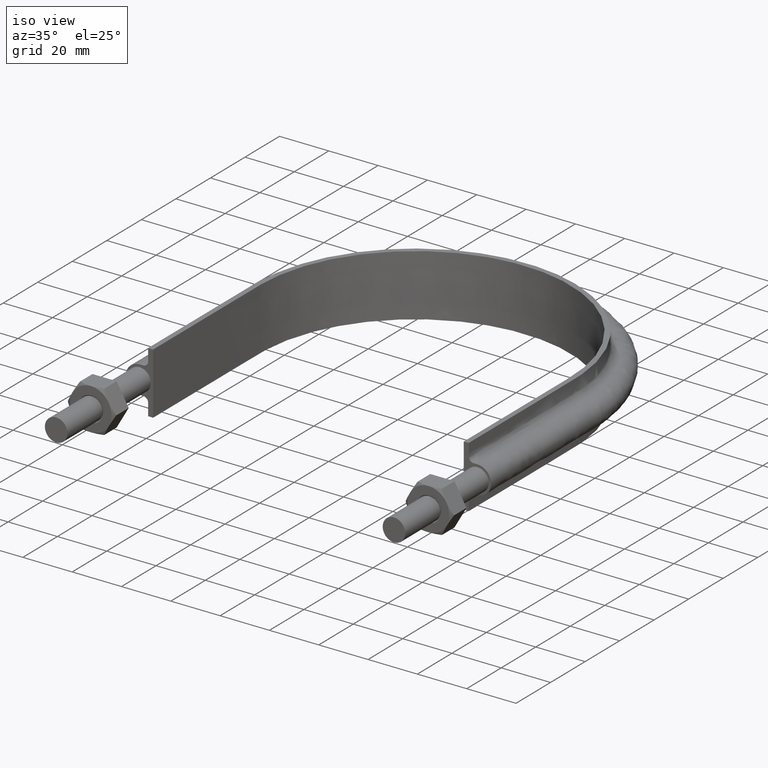
[diagram: clean part render]
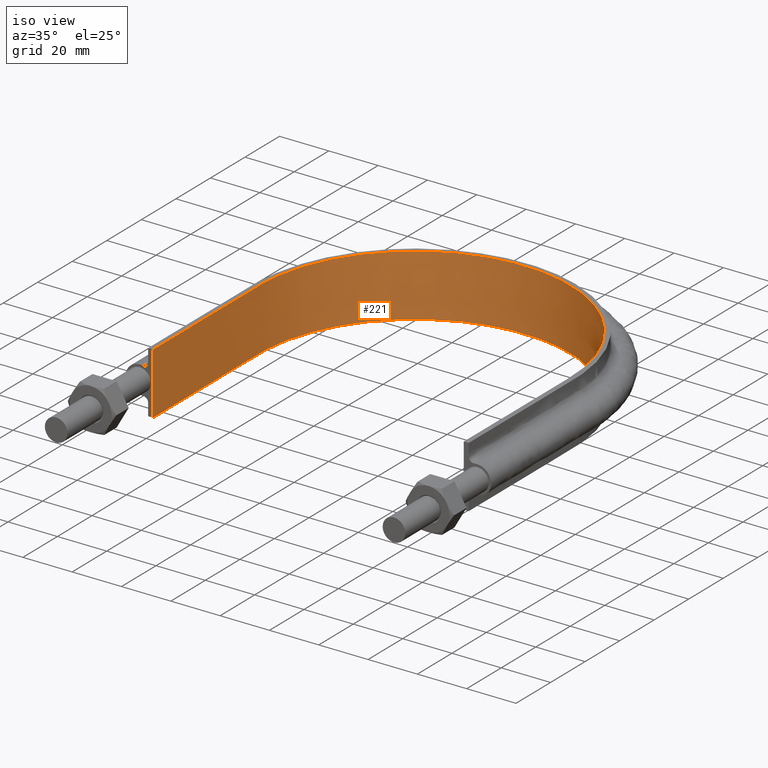
[diagram: tour spotlight — one face highlighted and labeled with its STEP entity id]
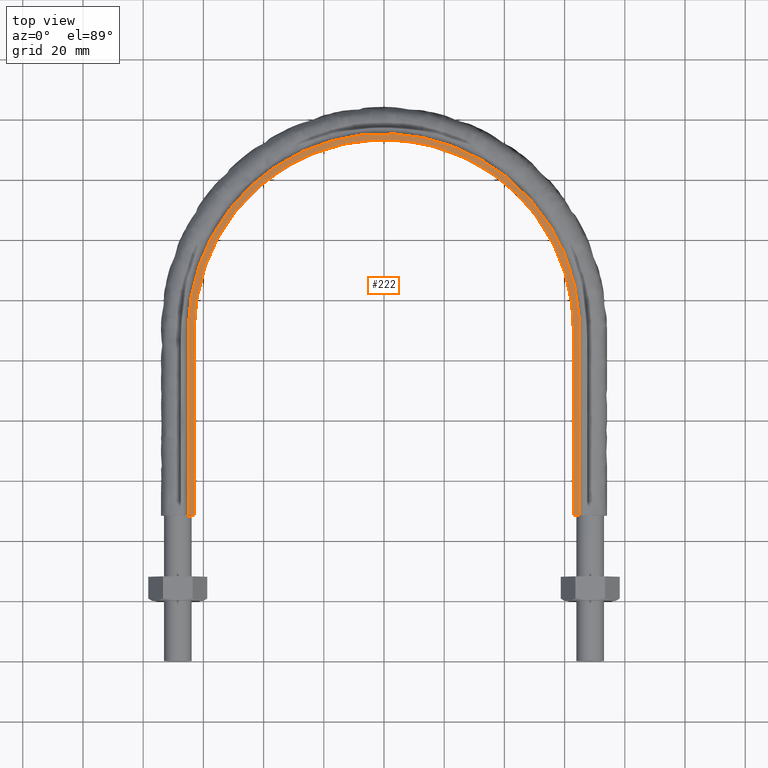
[diagram: tour spotlight — one face highlighted and labeled with its STEP entity id]
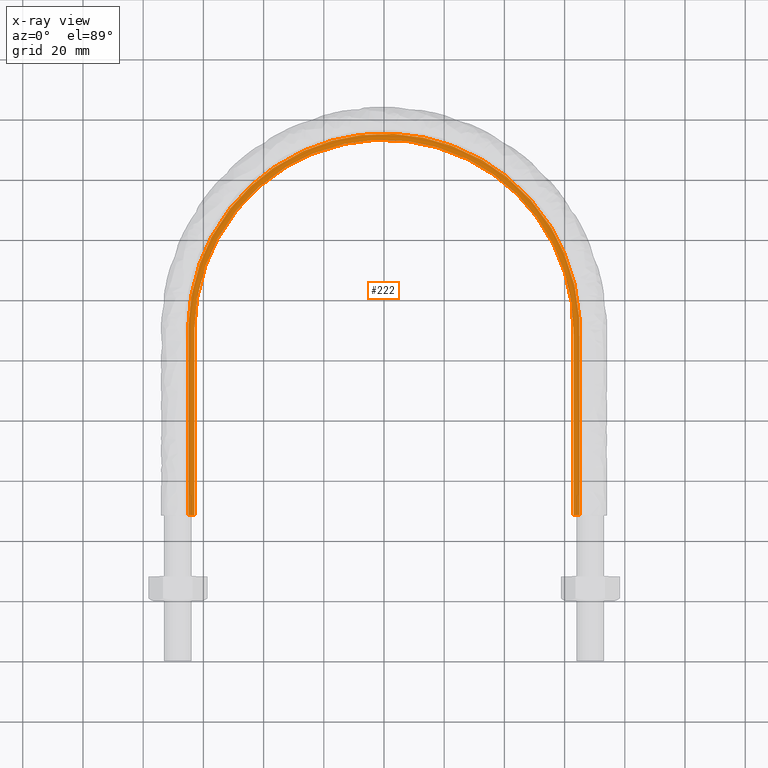
[diagram: x-ray of the same camera — body ghosted, this tour face saturated]
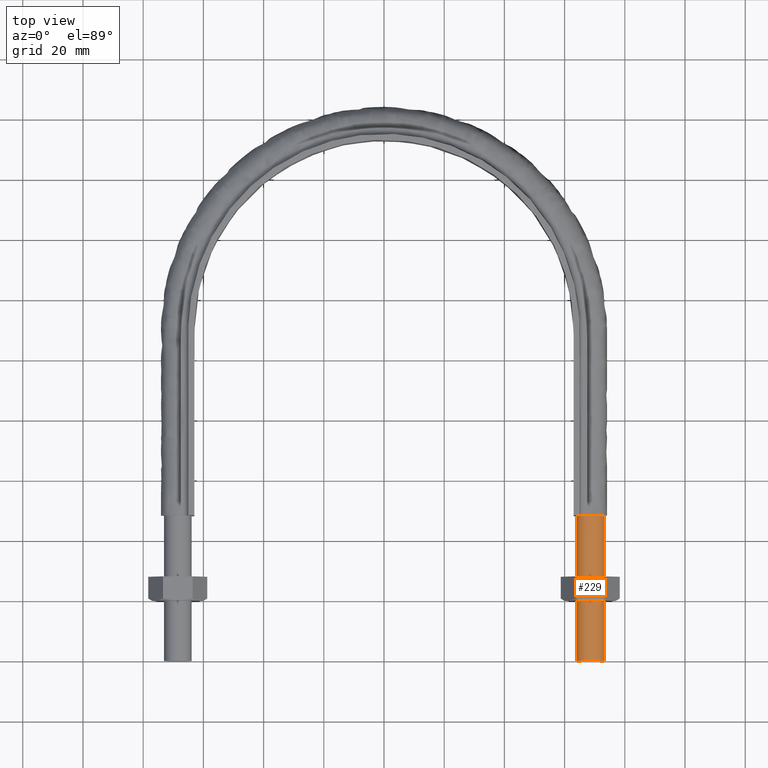
[diagram: tour spotlight — one face highlighted and labeled with its STEP entity id]
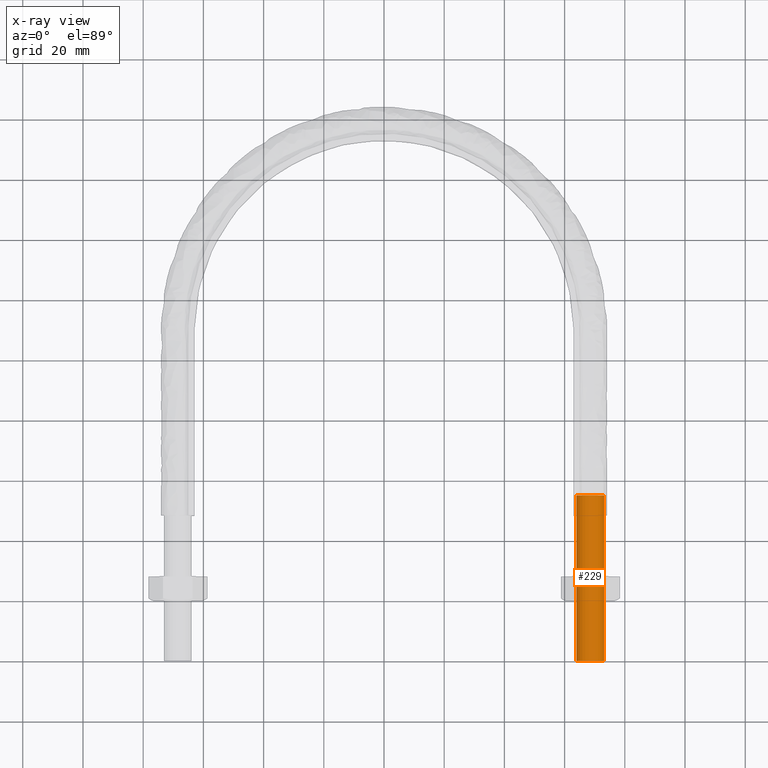
[diagram: x-ray of the same camera — body ghosted, this tour face saturated]
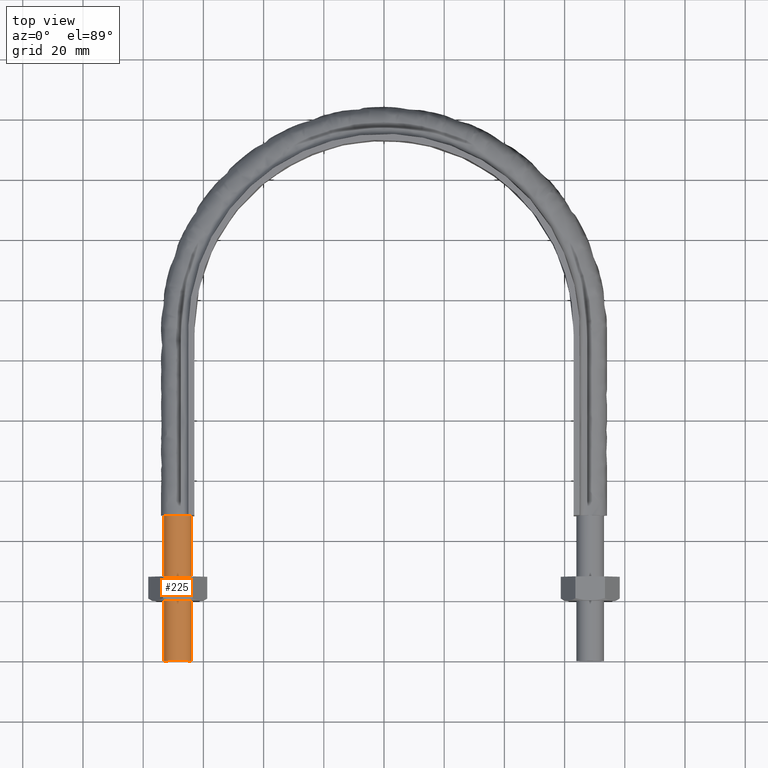
[diagram: tour spotlight — one face highlighted and labeled with its STEP entity id]
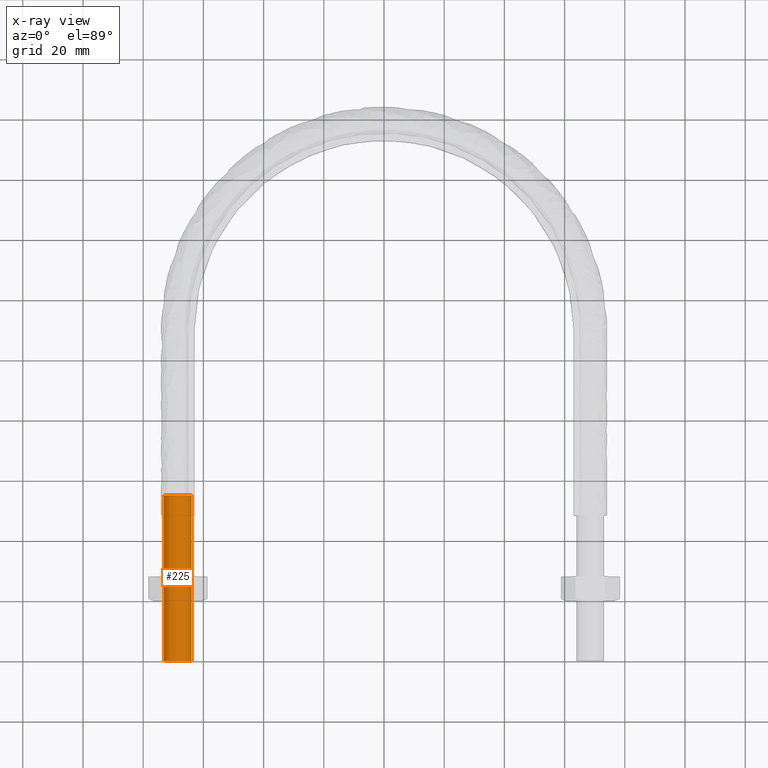
[diagram: x-ray of the same camera — body ghosted, this tour face saturated]
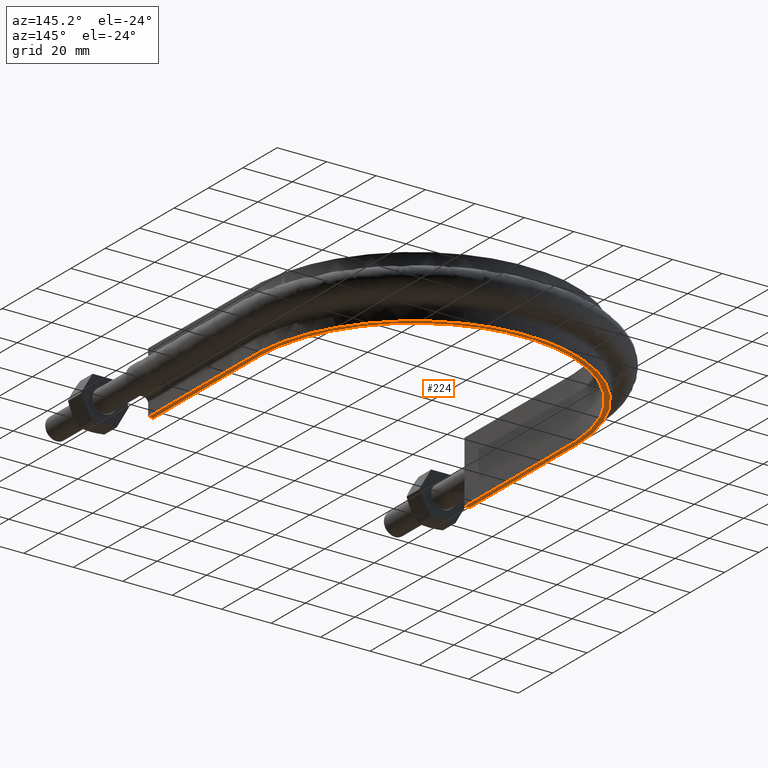
[diagram: tour spotlight — one face highlighted and labeled with its STEP entity id]
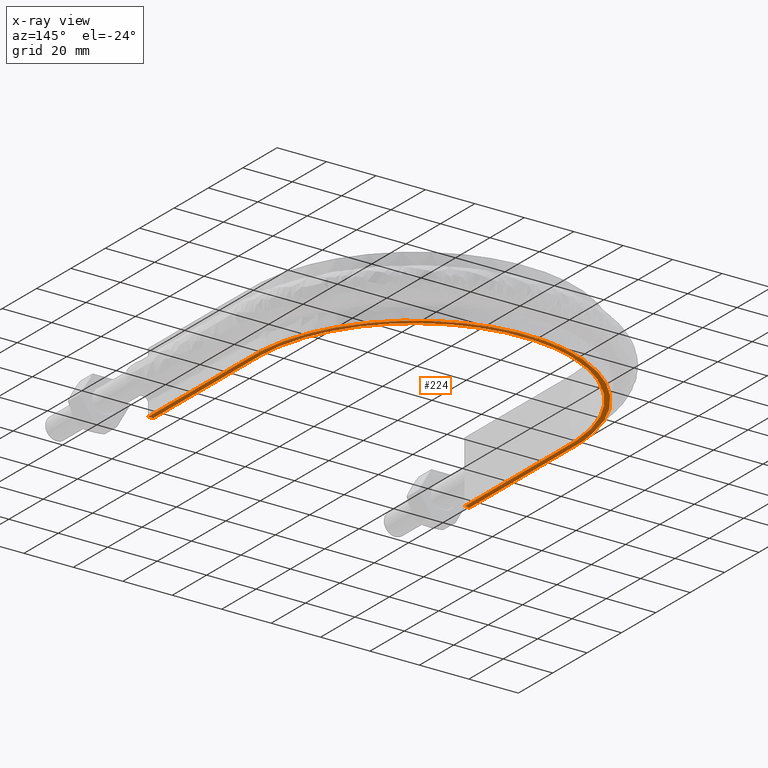
[diagram: x-ray of the same camera — body ghosted, this tour face saturated]
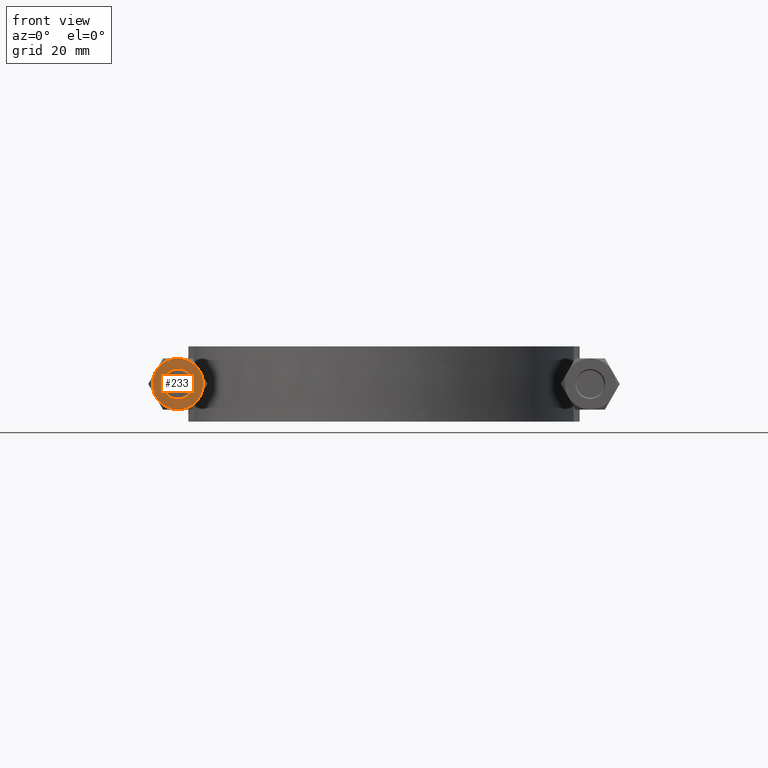
[diagram: tour spotlight — one face highlighted and labeled with its STEP entity id]
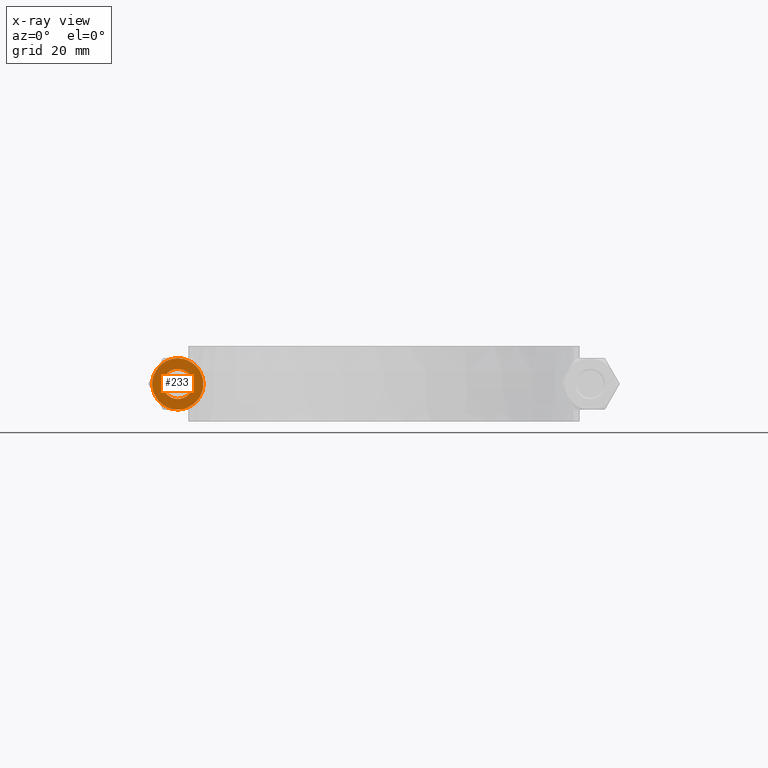
[diagram: x-ray of the same camera — body ghosted, this tour face saturated]
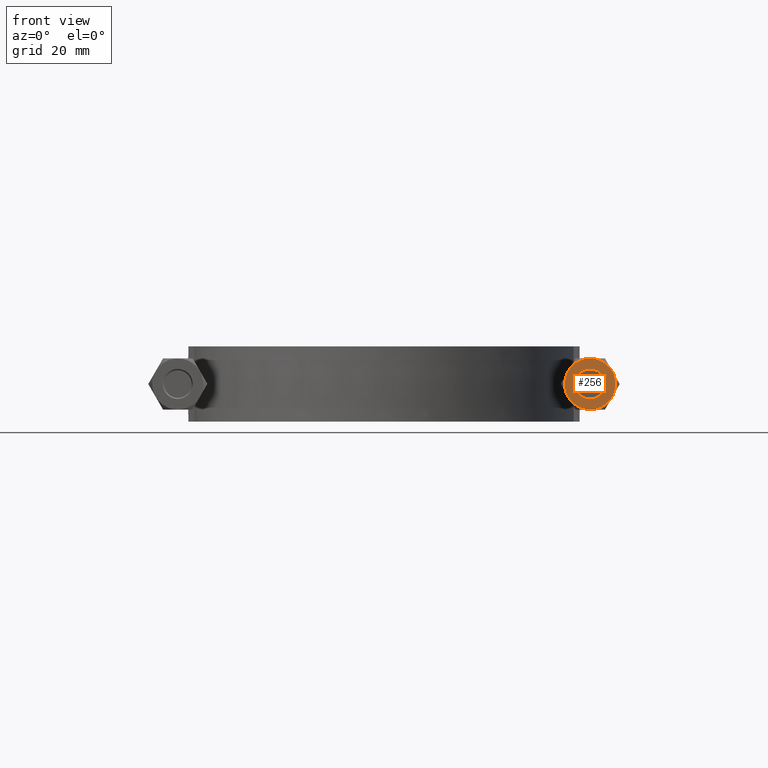
[diagram: tour spotlight — one face highlighted and labeled with its STEP entity id]
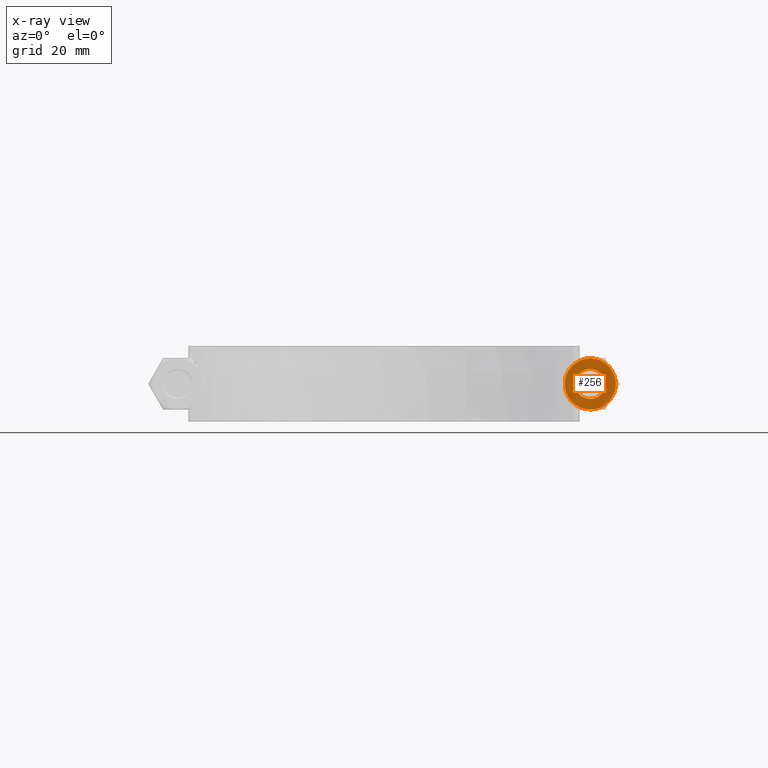
[diagram: x-ray of the same camera — body ghosted, this tour face saturated]
A machine part: a face-by-face anatomy tour. The part has 59 B-rep faces; the first image is the clean iso view, then the 7 largest visible faces are spotlighted one at a time (largest first), each with its STEP entity span.

Face 1 — iso view, entity #221. In plain terms, the highlighted face is a SurfaceOfExtrusion surface.
Definition (entity closure, byte-faithful):
#221 = ADVANCED_FACE( '', ( #283 ), #284, .T. );
#283 = FACE_OUTER_BOUND( '', #416, .T. );
#284 = SURFACE_OF_LINEAR_EXTRUSION( '', #417, #418 );
#416 = EDGE_LOOP( '', ( #1214, #1215, #1216, #1217 ) );
#417 = B_SPLINE_CURVE_WITH_KNOTS( '', 3, ( #1218, #1219, #1220, #1221, #1222, #1223, #1224, #1225, #1226, #1227, #1228, #1229, #1230, #1231, #1232, #1233 ), .UNSPECIFIED., .F., .F., ( 4, 3, 1, 1, 1, 1, 1, 1, 3, 4 ), ( -8.94070121951220, -8.00000000000000, -7.00000000000000, -6.00000000000000, -5.00000000000000, -4.00000000000000, -3.00000000000000, -2.00000000000000, -1.00000000000000, -0.0592987804878047 ), .UNSPECIFIED. );
#418 = VECTOR( '', #1234, 1000.00000000000 );
#1214 = ORIENTED_EDGE( '', *, *, #1629, .T. );
#1215 = ORIENTED_EDGE( '', *, *, #1637, .T. );
#1216 = ORIENTED_EDGE( '', *, *, #1634, .F. );
#1217 = ORIENTED_EDGE( '', *, *, #1638, .T. );
#1218 = CARTESIAN_POINT( '', ( 63.0000000000001, 48.3000000000000, 12.5000100000910 ) );
#1219 = CARTESIAN_POINT( '', ( 63.0000000000001, 68.8699999999999, 12.5000100000910 ) );
#1220 = CARTESIAN_POINT( '', ( 63.0000000000001, 89.4400000000000, 12.5000100000910 ) );
#1221 = CARTESIAN_POINT( '', ( 63.0000000000001, 110.010000000000, 12.5000100000910 ) );
#1222 = CARTESIAN_POINT( '', ( 63.0000000000001, 119.418317561996, 12.5000100000910 ) );
#1223 = CARTESIAN_POINT( '', ( 58.6987050835477, 138.284426223830, 12.5000100000910 ) );
#1224 = CARTESIAN_POINT( '', ( 40.6207642746977, 160.945085260037, 12.5000100000910 ) );
#1225 = CARTESIAN_POINT( '', ( 14.4973829202631, 173.527533108938, 12.5000100000910 ) );
#1226 = CARTESIAN_POINT( '', ( -14.4973829202630, 173.527533108938, 12.5000100000910 ) );
#1227 = CARTESIAN_POINT( '', ( -40.6207642746976, 160.945085260037, 12.5000100000910 ) );
#1228 = CARTESIAN_POINT( '', ( -58.6987050835477, 138.284426223830, 12.5000100000910 ) );
#1229 = CARTESIAN_POINT( '', ( -63.0000000000000, 119.418317561996, 12.5000100000910 ) );
#1230 = CARTESIAN_POINT( '', ( -63.0000000000000, 110.010000000000, 12.5000100000910 ) );
#1231 = CARTESIAN_POINT( '', ( -63.0000000000000, 89.4400000000000, 12.5000100000910 ) );
#1232 = CARTESIAN_POINT( '', ( -63.0000000000000, 68.8700000000000, 12.5000100000910 ) );
#1233 = CARTESIAN_POINT( '', ( -63.0000000000000, 48.3000000000000, 12.5000100000910 ) );
#1234 = DIRECTION( '', ( 0.000000000000000, 0.000000000000000, -1.00000000000000 ) );
#1629 = EDGE_CURVE( '', #1751, #1752, #1753, .T. );
#1634 = EDGE_CURVE( '', #1759, #1762, #1763, .T. );
#1637 = EDGE_CURVE( '', #1752, #1762, #1767, .F. );
#1638 = EDGE_CURVE( '', #1759, #1751, #1768, .T. );
#1751 = VERTEX_POINT( '', #1955 );
#1752 = VERTEX_POINT( '', #1956 );
#1753 = LINE( '', #1957, #1958 );
#1759 = VERTEX_POINT( '', #1996 );
#1762 = VERTEX_POINT( '', #2000 );
#1763 = LINE( '', #2001, #2002 );
#1767 = B_SPLINE_CURVE_WITH_KNOTS( '', 3, ( #2037, #2038, #2039, #2040, #2041, #2042, #2043, #2044, #2045, #2046, #2047, #2048, #2049, #2050, #2051, #2052 ), .UNSPECIFIED., .F., .F., ( 4, 3, 1, 1, 1, 1, 1, 1, 3, 4 ), ( -8.94070121951220, -8.00000000000000, -7.00000000000000, -6.00000000000000, -5.00000000000000, -4.00000000000000, -3.00000000000000, -2.00000000000000, -1.00000000000000, -0.0592987804878047 ), .UNSPECIFIED. );
#1768 = B_SPLINE_CURVE_WITH_KNOTS( '', 3, ( #2053, #2054, #2055, #2056, #2057, #2058, #2059, #2060, #2061, #2062, #2063, #2064, #2065, #2066, #2067, #2068, #2069, #2070, #2071, #2072, #2073, #2074, #2075, #2076, #2077, #2078, #2079, #2080, #2081, #2082, #2083, #2084, #2085, #2086, #2087, #2088, #2089, #2090, #2091, #2092, #2093, #2094, #2095, #2096, #2097, #2098, #2099, #2100, #2101, #2102, #2103, #2104, #2105, #2106, #2107, #2108, #2109, #2110, #2111, #2112, #2113, #2114, #2115, #2116, #2117, #2118, #2119, #2120, #2121, #2122, #2123, #2124, #2125, #2126, #2127, #2128, #2129, #2130, #2131, #2132, #2133, #2134, #2135, #2136, #2137, #2138, #2139, #2140 ), .UNSPECIFIED., .F., .F., ( 4, 1, 2, 2, 2, 2, 2, 2, 2, 2, 2, 2, 2, 2, 2, 2, 2, 2, 2, 2, 2, 2, 2, 2, 2, 2, 2, 2, 2, 2, 2, 2, 2, 2, 2, 2, 2, 2, 2, 2, 2, 2, 2, 1, 4 ), ( 4.85722573273506E-017, 0.0403585199906452, 0.0605377799859678, 0.0630601874853832, 0.0655825949847985, 0.0706274099836291, 0.0807170399812904, 0.0857618549801210, 0.0882842624795363, 0.0908066699789517, 0.100896299976613, 0.105941114975443, 0.108463522474859, 0.110985929974274, 0.121075559971935, 0.126120374970766, 0.128642782470181, 0.131165189969596, 0.141254819967257, 0.146299634966088, 0.148822042465503, 0.151344449964918, 0.161434079962579, 0.171523709960240, 0.174046117459656, 0.176568524959071, 0.181613339957901, 0.191702969955563, 0.194225377454978, 0.196747784954393, 0.201792599953224, 0.211882229950885, 0.214404637450300, 0.216927044949715, 0.221971859948546, 0.232061489946206, 0.234583897445622, 0.237106304945037, 0.242151119943867, 0.252240749941528, 0.257285564940358, 0.259807972439773, 0.262330379939188, 0.282509639934510, 0.322868159925153 ), .UNSPECIFIED. );
#1955 = CARTESIAN_POINT( '', ( -63.0000000000001, 48.3000000000000, 12.5000000000000 ) );
#1956 = CARTESIAN_POINT( '', ( -63.0000000000000, 48.3000000000001, -12.5000000000000 ) );
#1957 = CARTESIAN_POINT( '', ( -63.0000000000001, 48.3000000000000, 12.5000100000910 ) );
#1958 = VECTOR( '', #2547, 1000.00000000000 );
#1996 = CARTESIAN_POINT( '', ( 63.0000000000001, 48.3000000000000, 12.5000000000000 ) );
#2000 = CARTESIAN_POINT( '', ( 63.0000000000001, 48.3000000000000, -12.5000000000000 ) );
#2001 = CARTESIAN_POINT( '', ( 63.0000000000001, 48.3000000000000, 12.5000100000910 ) );
#2002 = VECTOR( '', #2551, 1000.00000000000 );
#2037 = CARTESIAN_POINT( '', ( 63.0000000000001, 48.3000000000000, -12.5000000000000 ) );
#2038 = CARTESIAN_POINT( '', ( 63.0000000000001, 68.8699999999999, -12.5000000000000 ) );
#2039 = CARTESIAN_POINT( '', ( 63.0000000000001, 89.4400000000000, -12.5000000000000 ) );
#2040 = CARTESIAN_POINT( '', ( 63.0000000000001, 110.010000000000, -12.5000000000000 ) );
#2041 = CARTESIAN_POINT( '', ( 63.0000000000001, 119.418317561996, -12.5000000000000 ) );
#2042 = CARTESIAN_POINT( '', ( 58.6987050835477, 138.284426223830, -12.5000000000000 ) );
#2043 = CARTESIAN_POINT( '', ( 40.6207642746977, 160.945085260037, -12.5000000000000 ) );
#2044 = CARTESIAN_POINT( '', ( 14.4973829202631, 173.527533108938, -12.5000000000000 ) );
#2045 = CARTESIAN_POINT( '', ( -14.4973829202630, 173.527533108938, -12.5000000000000 ) );
#2046 = CARTESIAN_POINT( '', ( -40.6207642746976, 160.945085260037, -12.5000000000000 ) );
#2047 = CARTESIAN_POINT( '', ( -58.6987050835477, 138.284426223830, -12.5000000000000 ) );
#2048 = CARTESIAN_POINT( '', ( -63.0000000000000, 119.418317561996, -12.5000000000000 ) );
#2049 = CARTESIAN_POINT( '', ( -63.0000000000000, 110.010000000000, -12.5000000000000 ) );
#2050 = CARTESIAN_POINT( '', ( -63.0000000000000, 89.4400000000000, -12.5000000000000 ) );
#2051 = CARTESIAN_POINT( '', ( -63.0000000000000, 68.8700000000000, -12.5000000000000 ) );
#2052 = CARTESIAN_POINT( '', ( -63.0000000000000, 48.3000000000000, -12.5000000000000 ) );
#2053 = CARTESIAN_POINT( '', ( 63.0000000000001, 48.3000000000000, 12.5000000000000 ) );
#2054 = CARTESIAN_POINT( '', ( 63.0000000000001, 61.7528561301916, 12.5000000000000 ) );
#2055 = CARTESIAN_POINT( '', ( 63.0000000000001, 81.9321403254790, 12.5000000000000 ) );
#2056 = CARTESIAN_POINT( '', ( 63.0000000000001, 102.111424520766, 12.5000000000000 ) );
#2057 = CARTESIAN_POINT( '', ( 63.0000000000001, 109.678656093999, 12.5000000000000 ) );
#2058 = CARTESIAN_POINT( '', ( 63.0036029891679, 110.519465182119, 12.5000000000000 ) );
#2059 = CARTESIAN_POINT( '', ( 62.9669155844543, 112.201015380271, 12.5000000000000 ) );
#2060 = CARTESIAN_POINT( '', ( 62.9314314675281, 113.042572820258, 12.5000000000000 ) );
#2061 = CARTESIAN_POINT( '', ( 62.7742647165871, 115.561712269893, 12.5000000000000 ) );
#2062 = CARTESIAN_POINT( '', ( 62.6026302739461, 117.225838154575, 12.5000000000000 ) );
#2063 = CARTESIAN_POINT( '', ( 61.8953252355574, 122.174183870876, 12.5000000000000 ) );
#2064 = CARTESIAN_POINT( '', ( 61.1688557666381, 125.414738580781, 12.5000000000000 ) );
#2065 = CARTESIAN_POINT( '', ( 59.6981646336119, 130.188380190173, 12.5000000000000 ) );
#2066 = CARTESIAN_POINT( '', ( 59.1440337672952, 131.764970165355, 12.5000000000000 ) );
#2067 = CARTESIAN_POINT( '', ( 58.2133099602673, 134.107077840930, 12.5000000000000 ) );
#2068 = CARTESIAN_POINT( '', ( 57.8862226550761, 134.884260710037, 12.5000000000000 ) );
#2069 = CARTESIAN_POINT( '', ( 57.2044746038232, 136.416807183752, 12.5000000000000 ) );
#2070 = CARTESIAN_POINT( '', ( 56.8491236402779, 137.173949808864, 12.5000000000000 ) );
#2071 = CARTESIAN_POINT( '', ( 55.0006153350253, 140.914407975142, 12.5000000000000 ) );
#2072 = CARTESIAN_POINT( '', ( 53.2945694846637, 143.763454630954, 12.5000000000000 ) );
#2073 = CARTESIAN_POINT( '', ( 50.4058851931547, 147.829135949361, 12.5000000000000 ) );
#2074 = CARTESIAN_POINT( '', ( 49.3877096347451, 149.149497431627, 12.5000000000000 ) );
#2075 = CARTESIAN_POINT( '', ( 47.7757792797261, 151.076640126207, 12.5000000000000 ) );
#2076 = CARTESIAN_POINT( '', ( 47.2235115971916, 151.711010351235, 12.5000000000000 ) );
#2077 = CARTESIAN_POINT( '', ( 46.0938430282918, 152.957490539723, 12.5000000000000 ) );
#2078 = CARTESIAN_POINT( '', ( 45.5184649226947, 153.567446349943, 12.5000000000000 ) );
#2079 = CARTESIAN_POINT( '', ( 42.5895836160396, 156.551721608749, 12.5000000000000 ) );
#2080 = CARTESIAN_POINT( '', ( 40.0808901752949, 158.730515052779, 12.5000000000000 ) );
#2081 = CARTESIAN_POINT( '', ( 36.0701769262574, 161.686658988246, 12.5000000000000 ) );
#2082 = CARTESIAN_POINT( '', ( 34.6921332752079, 162.620208495386, 12.5000000000000 ) );
#2083 = CARTESIAN_POINT( '', ( 32.5629908908397, 163.942321331327, 12.5000000000000 ) );
#2084 = CARTESIAN_POINT( '', ( 31.8429147391925, 164.369970374909, 12.5000000000000 ) );
#2085 = CARTESIAN_POINT( '', ( 30.3817781284526, 165.198830086816, 12.5000000000000 ) );
#2086 = CARTESIAN_POINT( '', ( 29.6404939153229, 165.600049887960, 12.5000000000000 ) );
#2087 = CARTESIAN_POINT( '', ( 25.9147314496090, 167.522247019428, 12.5000000000000 ) );
#2088 = CARTESIAN_POINT( '', ( 22.8468170495402, 168.808839464741, 12.5000000000000 ) );
#2089 = CARTESIAN_POINT( '', ( 18.1166878313116, 170.369745036333, 12.5000000000000 ) );
#2090 = CARTESIAN_POINT( '', ( 16.5184663190759, 170.828159883137, 12.5000000000000 ) );
#2091 = CARTESIAN_POINT( '', ( 14.0879720623324, 171.420378750901, 12.5000000000000 ) );
#2092 = CARTESIAN_POINT( '', ( 13.2722569227007, 171.601817184578, 12.5000000000000 ) );
#2093 = CARTESIAN_POINT( '', ( 11.6296062344383, 171.932414166218, 12.5000000000000 ) );
#2094 = CARTESIAN_POINT( '', ( 10.8011892588898, 172.081826847964, 12.5000000000000 ) );
#2095 = CARTESIAN_POINT( '', ( 6.64837338529781, 172.744621052144, 12.5000000000000 ) );
#2096 = CARTESIAN_POINT( '', ( 3.32680303459536, 173.002956882961, 12.5000000000000 ) );
#2097 = CARTESIAN_POINT( '', ( -3.31504259065480, 173.003571470062, 12.5000000000000 ) );
#2098 = CARTESIAN_POINT( '', ( -6.63531783672263, 172.745838877775, 12.5000000000000 ) );
#2099 = CARTESIAN_POINT( '', ( -10.7848111072922, 172.084654727947, 12.5000000000000 ) );
#2100 = CARTESIAN_POINT( '', ( -11.6143828511466, 171.935271661077, 12.5000000000000 ) );
#2101 = CARTESIAN_POINT( '', ( -13.2582911311271, 171.604830620017, 12.5000000000000 ) );
#2102 = CARTESIAN_POINT( '', ( -14.0745225471330, 171.423468831004, 12.5000000000000 ) );
#2103 = CARTESIAN_POINT( '', ( -16.5062429875162, 170.831507874132, 12.5000000000000 ) );
#2104 = CARTESIAN_POINT( '', ( -18.1048539377693, 170.373303138248, 12.5000000000000 ) );
#2105 = CARTESIAN_POINT( '', ( -22.8350042791568, 168.813427677162, 12.5000000000000 ) );
#2106 = CARTESIAN_POINT( '', ( -25.9014093667636, 167.528041944287, 12.5000000000000 ) );
#2107 = CARTESIAN_POINT( '', ( -29.6236851201293, 165.608987805660, 12.5000000000000 ) );
#2108 = CARTESIAN_POINT( '', ( -30.3637687063948, 165.208745066269, 12.5000000000000 ) );
#2109 = CARTESIAN_POINT( '', ( -31.8269381963086, 164.379327713897, 12.5000000000000 ) );
#2110 = CARTESIAN_POINT( '', ( -32.5478930458141, 163.951430862916, 12.5000000000000 ) );
#2111 = CARTESIAN_POINT( '', ( -34.6792940248365, 162.628704455284, 12.5000000000000 ) );
#2112 = CARTESIAN_POINT( '', ( -36.0583409066396, 161.694918845943, 12.5000000000000 ) );
#2113 = CARTESIAN_POINT( '', ( -40.0708003962987, 158.738874054776, 12.5000000000000 ) );
#2114 = CARTESIAN_POINT( '', ( -42.5789623277134, 156.561220323517, 12.5000000000000 ) );
#2115 = CARTESIAN_POINT( '', ( -45.5058158142335, 153.580661240098, 12.5000000000000 ) );
#2116 = CARTESIAN_POINT( '', ( -46.0807202027165, 152.971564205372, 12.5000000000000 ) );
#2117 = CARTESIAN_POINT( '', ( -47.2093238293025, 151.727061577096, 12.5000000000000 ) );
#2118 = CARTESIAN_POINT( '', ( -47.7629465235345, 151.091591272907, 12.5000000000000 ) );
#2119 = CARTESIAN_POINT( '', ( -49.3772034451763, 149.162827201710, 12.5000000000000 ) );
#2120 = CARTESIAN_POINT( '', ( -50.3964994659766, 147.841671342456, 12.5000000000000 ) );
#2121 = CARTESIAN_POINT( '', ( -53.2875785646770, 143.774634143876, 12.5000000000000 ) );
#2122 = CARTESIAN_POINT( '', ( -54.9939299231489, 140.926038297650, 12.5000000000000 ) );
#2123 = CARTESIAN_POINT( '', ( -56.8421556479950, 137.188518418479, 12.5000000000000 ) );
#2124 = CARTESIAN_POINT( '', ( -57.1974166883330, 136.432083530124, 12.5000000000000 ) );
#2125 = CARTESIAN_POINT( '', ( -57.8789401470319, 134.901208867970, 12.5000000000000 ) );
#2126 = CARTESIAN_POINT( '', ( -58.2057970540347, 134.125293405857, 12.5000000000000 ) );
#2127 = CARTESIAN_POINT( '', ( -59.1381982440397, 131.781012353943, 12.5000000000000 ) );
#2128 = CARTESIAN_POINT( '', ( -59.6931478828082, 130.203330651056, 12.5000000000000 ) );
#2129 = CARTESIAN_POINT( '', ( -61.1657358543388, 125.427513867541, 12.5000000000000 ) );
#2130 = CARTESIAN_POINT( '', ( -61.8927230283381, 122.186965235983, 12.5000000000000 ) );
#2131 = CARTESIAN_POINT( '', ( -62.6008369697937, 117.241078370440, 12.5000000000000 ) );
#2132 = CARTESIAN_POINT( '', ( -62.7727451798712, 115.578182671217, 12.5000000000000 ) );
#2133 = CARTESIAN_POINT( '', ( -62.9304885137461, 113.061565974202, 12.5000000000000 ) );
#2134 = CARTESIAN_POINT( '', ( -62.9662674057679, 112.219356753179, 12.5000000000000 ) );
#2135 = CARTESIAN_POINT( '', ( -63.0034563058177, 110.537313962985, 12.5000000000000 ) );
#2136 = CARTESIAN_POINT( '', ( -63.0000000000000, 109.696264901837, 12.5000000000000 ) );
#2137 = CARTESIAN_POINT( '', ( -63.0000000000000, 102.126862379693, 12.5000000000000 ) );
#2138 = CARTESIAN_POINT( '', ( -63.0000000000000, 81.9417889873080, 12.5000000000000 ) );
#2139 = CARTESIAN_POINT( '', ( -63.0000000000001, 61.7567155949231, 12.5000000000000 ) );
#2140 = CARTESIAN_POINT( '', ( -63.0000000000000, 48.3000000000001, 12.5000000000000 ) );
#2547 = DIRECTION( '', ( 0.000000000000000, 0.000000000000000, -1.00000000000000 ) );
#2551 = DIRECTION( '', ( 0.000000000000000, 0.000000000000000, -1.00000000000000 ) );

Face 2 — top view, entity #222. An x-ray twin of the same camera follows (body ghosted, this face saturated) — the face is partly hidden behind the body. In plain terms, the highlighted planar face has unit normal (0, 0, 1).
Definition (entity closure, byte-faithful):
#222 = ADVANCED_FACE( '', ( #285 ), #286, .T. );
#285 = FACE_OUTER_BOUND( '', #419, .T. );
#286 = PLANE( '', #420 );
#419 = EDGE_LOOP( '', ( #1235, #1236, #1237, #1238 ) );
#420 = AXIS2_PLACEMENT_3D( '', #1239, #1240, #1241 );
#1235 = ORIENTED_EDGE( '', *, *, #1630, .T. );
#1236 = ORIENTED_EDGE( '', *, *, #1638, .F. );
#1237 = ORIENTED_EDGE( '', *, *, #1633, .T. );
#1238 = ORIENTED_EDGE( '', *, *, #1639, .F. );
#1239 = CARTESIAN_POINT( '', ( 80.0000000000000, 208.300000000000, 12.5000000000000 ) );
#1240 = DIRECTION( '', ( 0.000000000000000, 0.000000000000000, 1.00000000000000 ) );
#1241 = DIRECTION( '', ( 1.22460635382238E-016, 1.00000000000000, 0.000000000000000 ) );
#1630 = EDGE_CURVE( '', #1754, #1751, #1755, .T. );
#1633 = EDGE_CURVE( '', #1759, #1760, #1761, .T. );
#1638 = EDGE_CURVE( '', #1759, #1751, #1768, .T. );
#1639 = EDGE_CURVE( '', #1754, #1760, #1769, .T. );
#1751 = VERTEX_POINT( '', #1955 );
#1754 = VERTEX_POINT( '', #1959 );
#1755 = LINE( '', #1960, #1961 );
#1759 = VERTEX_POINT( '', #1996 );
#1760 = VERTEX_POINT( '', #1997 );
#1761 = LINE( '', #1998, #1999 );
#1768 = B_SPLINE_CURVE_WITH_KNOTS( '', 3, ( #2053, #2054, #2055, #2056, #2057, #2058, #2059, #2060, #2061, #2062, #2063, #2064, #2065, #2066, #2067, #2068, #2069, #2070, #2071, #2072, #2073, #2074, #2075, #2076, #2077, #2078, #2079, #2080, #2081, #2082, #2083, #2084, #2085, #2086, #2087, #2088, #2089, #2090, #2091, #2092, #2093, #2094, #2095, #2096, #2097, #2098, #2099, #2100, #2101, #2102, #2103, #2104, #2105, #2106, #2107, #2108, #2109, #2110, #2111, #2112, #2113, #2114, #2115, #2116, #2117, #2118, #2119, #2120, #2121, #2122, #2123, #2124, #2125, #2126, #2127, #2128, #2129, #2130, #2131, #2132, #2133, #2134, #2135, #2136, #2137, #2138, #2139, #2140 ), .UNSPECIFIED., .F., .F., ( 4, 1, 2, 2, 2, 2, 2, 2, 2, 2, 2, 2, 2, 2, 2, 2, 2, 2, 2, 2, 2, 2, 2, 2, 2, 2, 2, 2, 2, 2, 2, 2, 2, 2, 2, 2, 2, 2, 2, 2, 2, 2, 2, 1, 4 ), ( 4.85722573273506E-017, 0.0403585199906452, 0.0605377799859678, 0.0630601874853832, 0.0655825949847985, 0.0706274099836291, 0.0807170399812904, 0.0857618549801210, 0.0882842624795363, 0.0908066699789517, 0.100896299976613, 0.105941114975443, 0.108463522474859, 0.110985929974274, 0.121075559971935, 0.126120374970766, 0.128642782470181, 0.131165189969596, 0.141254819967257, 0.146299634966088, 0.148822042465503, 0.151344449964918, 0.161434079962579, 0.171523709960240, 0.174046117459656, 0.176568524959071, 0.181613339957901, 0.191702969955563, 0.194225377454978, 0.196747784954393, 0.201792599953224, 0.211882229950885, 0.214404637450300, 0.216927044949715, 0.221971859948546, 0.232061489946206, 0.234583897445622, 0.237106304945037, 0.242151119943867, 0.252240749941528, 0.257285564940358, 0.259807972439773, 0.262330379939188, 0.282509639934510, 0.322868159925153 ), .UNSPECIFIED. );
#1769 = B_SPLINE_CURVE_WITH_KNOTS( '', 3, ( #2141, #2142, #2143, #2144, #2145, #2146, #2147, #2148, #2149, #2150, #2151, #2152, #2153, #2154, #2155, #2156 ), .UNSPECIFIED., .F., .F., ( 4, 3, 1, 1, 1, 1, 1, 1, 3, 4 ), ( 0.0592987804878048, 1.00000000000000, 2.00000000000000, 3.00000000000000, 4.00000000000000, 5.00000000000000, 6.00000000000000, 7.00000000000000, 8.00000000000000, 8.94070121951219 ), .UNSPECIFIED. );
#1955 = CARTESIAN_POINT( '', ( -63.0000000000001, 48.3000000000000, 12.5000000000000 ) );
#1959 = CARTESIAN_POINT( '', ( -65.0000000000000, 48.3000000000000, 12.5000000000000 ) );
#1960 = CARTESIAN_POINT( '', ( -80.0000000000000, 48.3000000000001, 12.5000000000000 ) );
#1961 = VECTOR( '', #2548, 1000.00000000000 );
#1996 = CARTESIAN_POINT( '', ( 63.0000000000001, 48.3000000000000, 12.5000000000000 ) );
#1997 = CARTESIAN_POINT( '', ( 65.0000000000001, 48.3000000000001, 12.5000000000000 ) );
#1998 = CARTESIAN_POINT( '', ( -80.0000000000000, 48.3000000000001, 12.5000000000000 ) );
#1999 = VECTOR( '', #2550, 1000.00000000000 );
#2053 = CARTESIAN_POINT( '', ( 63.0000000000001, 48.3000000000000, 12.5000000000000 ) );
#2054 = CARTESIAN_POINT( '', ( 63.0000000000001, 61.7528561301916, 12.5000000000000 ) );
#2055 = CARTESIAN_POINT( '', ( 63.0000000000001, 81.9321403254790, 12.5000000000000 ) );
#2056 = CARTESIAN_POINT( '', ( 63.0000000000001, 102.111424520766, 12.5000000000000 ) );
#2057 = CARTESIAN_POINT( '', ( 63.0000000000001, 109.678656093999, 12.5000000000000 ) );
#2058 = CARTESIAN_POINT( '', ( 63.0036029891679, 110.519465182119, 12.5000000000000 ) );
#2059 = CARTESIAN_POINT( '', ( 62.9669155844543, 112.201015380271, 12.5000000000000 ) );
#2060 = CARTESIAN_POINT( '', ( 62.9314314675281, 113.042572820258, 12.5000000000000 ) );
#2061 = CARTESIAN_POINT( '', ( 62.7742647165871, 115.561712269893, 12.5000000000000 ) );
#2062 = CARTESIAN_POINT( '', ( 62.6026302739461, 117.225838154575, 12.5000000000000 ) );
#2063 = CARTESIAN_POINT( '', ( 61.8953252355574, 122.174183870876, 12.5000000000000 ) );
#2064 = CARTESIAN_POINT( '', ( 61.1688557666381, 125.414738580781, 12.5000000000000 ) );
#2065 = CARTESIAN_POINT( '', ( 59.6981646336119, 130.188380190173, 12.5000000000000 ) );
#2066 = CARTESIAN_POINT( '', ( 59.1440337672952, 131.764970165355, 12.5000000000000 ) );
#2067 = CARTESIAN_POINT( '', ( 58.2133099602673, 134.107077840930, 12.5000000000000 ) );
#2068 = CARTESIAN_POINT( '', ( 57.8862226550761, 134.884260710037, 12.5000000000000 ) );
#2069 = CARTESIAN_POINT( '', ( 57.2044746038232, 136.416807183752, 12.5000000000000 ) );
#2070 = CARTESIAN_POINT( '', ( 56.8491236402779, 137.173949808864, 12.5000000000000 ) );
#2071 = CARTESIAN_POINT( '', ( 55.0006153350253, 140.914407975142, 12.5000000000000 ) );
#2072 = CARTESIAN_POINT( '', ( 53.2945694846637, 143.763454630954, 12.5000000000000 ) );
#2073 = CARTESIAN_POINT( '', ( 50.4058851931547, 147.829135949361, 12.5000000000000 ) );
#2074 = CARTESIAN_POINT( '', ( 49.3877096347451, 149.149497431627, 12.5000000000000 ) );
#2075 = CARTESIAN_POINT( '', ( 47.7757792797261, 151.076640126207, 12.5000000000000 ) );
#2076 = CARTESIAN_POINT( '', ( 47.2235115971916, 151.711010351235, 12.5000000000000 ) );
#2077 = CARTESIAN_POINT( '', ( 46.0938430282918, 152.957490539723, 12.5000000000000 ) );
#2078 = CARTESIAN_POINT( '', ( 45.5184649226947, 153.567446349943, 12.5000000000000 ) );
#2079 = CARTESIAN_POINT( '', ( 42.5895836160396, 156.551721608749, 12.5000000000000 ) );
#2080 = CARTESIAN_POINT( '', ( 40.0808901752949, 158.730515052779, 12.5000000000000 ) );
#2081 = CARTESIAN_POINT( '', ( 36.0701769262574, 161.686658988246, 12.5000000000000 ) );
#2082 = CARTESIAN_POINT( '', ( 34.6921332752079, 162.620208495386, 12.5000000000000 ) );
#2083 = CARTESIAN_POINT( '', ( 32.5629908908397, 163.942321331327, 12.5000000000000 ) );
#2084 = CARTESIAN_POINT( '', ( 31.8429147391925, 164.369970374909, 12.5000000000000 ) );
#2085 = CARTESIAN_POINT( '', ( 30.3817781284526, 165.198830086816, 12.5000000000000 ) );
#2086 = CARTESIAN_POINT( '', ( 29.6404939153229, 165.600049887960, 12.5000000000000 ) );
#2087 = CARTESIAN_POINT( '', ( 25.9147314496090, 167.522247019428, 12.5000000000000 ) );
#2088 = CARTESIAN_POINT( '', ( 22.8468170495402, 168.808839464741, 12.5000000000000 ) );
#2089 = CARTESIAN_POINT( '', ( 18.1166878313116, 170.369745036333, 12.5000000000000 ) );
#2090 = CARTESIAN_POINT( '', ( 16.5184663190759, 170.828159883137, 12.5000000000000 ) );
#2091 = CARTESIAN_POINT( '', ( 14.0879720623324, 171.420378750901, 12.5000000000000 ) );
#2092 = CARTESIAN_POINT( '', ( 13.2722569227007, 171.601817184578, 12.5000000000000 ) );
#2093 = CARTESIAN_POINT( '', ( 11.6296062344383, 171.932414166218, 12.5000000000000 ) );
#2094 = CARTESIAN_POINT( '', ( 10.8011892588898, 172.081826847964, 12.5000000000000 ) );
#2095 = CARTESIAN_POINT( '', ( 6.64837338529781, 172.744621052144, 12.5000000000000 ) );
#2096 = CARTESIAN_POINT( '', ( 3.32680303459536, 173.002956882961, 12.5000000000000 ) );
#2097 = CARTESIAN_POINT( '', ( -3.31504259065480, 173.003571470062, 12.5000000000000 ) );
#2098 = CARTESIAN_POINT( '', ( -6.63531783672263, 172.745838877775, 12.5000000000000 ) );
#2099 = CARTESIAN_POINT( '', ( -10.7848111072922, 172.084654727947, 12.5000000000000 ) );
#2100 = CARTESIAN_POINT( '', ( -11.6143828511466, 171.935271661077, 12.5000000000000 ) );
#2101 = CARTESIAN_POINT( '', ( -13.2582911311271, 171.604830620017, 12.5000000000000 ) );
#2102 = CARTESIAN_POINT( '', ( -14.0745225471330, 171.423468831004, 12.5000000000000 ) );
#2103 = CARTESIAN_POINT( '', ( -16.5062429875162, 170.831507874132, 12.5000000000000 ) );
#2104 = CARTESIAN_POINT( '', ( -18.1048539377693, 170.373303138248, 12.5000000000000 ) );
#2105 = CARTESIAN_POINT( '', ( -22.8350042791568, 168.813427677162, 12.5000000000000 ) );
#2106 = CARTESIAN_POINT( '', ( -25.9014093667636, 167.528041944287, 12.5000000000000 ) );
#2107 = CARTESIAN_POINT( '', ( -29.6236851201293, 165.608987805660, 12.5000000000000 ) );
#2108 = CARTESIAN_POINT( '', ( -30.3637687063948, 165.208745066269, 12.5000000000000 ) );
#2109 = CARTESIAN_POINT( '', ( -31.8269381963086, 164.379327713897, 12.5000000000000 ) );
#2110 = CARTESIAN_POINT( '', ( -32.5478930458141, 163.951430862916, 12.5000000000000 ) );
#2111 = CARTESIAN_POINT( '', ( -34.6792940248365, 162.628704455284, 12.5000000000000 ) );
#2112 = CARTESIAN_POINT( '', ( -36.0583409066396, 161.694918845943, 12.5000000000000 ) );
#2113 = CARTESIAN_POINT( '', ( -40.0708003962987, 158.738874054776, 12.5000000000000 ) );
#2114 = CARTESIAN_POINT( '', ( -42.5789623277134, 156.561220323517, 12.5000000000000 ) );
#2115 = CARTESIAN_POINT( '', ( -45.5058158142335, 153.580661240098, 12.5000000000000 ) );
#2116 = CARTESIAN_POINT( '', ( -46.0807202027165, 152.971564205372, 12.5000000000000 ) );
#2117 = CARTESIAN_POINT( '', ( -47.2093238293025, 151.727061577096, 12.5000000000000 ) );
#2118 = CARTESIAN_POINT( '', ( -47.7629465235345, 151.091591272907, 12.5000000000000 ) );
#2119 = CARTESIAN_POINT( '', ( -49.3772034451763, 149.162827201710, 12.5000000000000 ) );
#2120 = CARTESIAN_POINT( '', ( -50.3964994659766, 147.841671342456, 12.5000000000000 ) );
#2121 = CARTESIAN_POINT( '', ( -53.2875785646770, 143.774634143876, 12.5000000000000 ) );
#2122 = CARTESIAN_POINT( '', ( -54.9939299231489, 140.926038297650, 12.5000000000000 ) );
#2123 = CARTESIAN_POINT( '', ( -56.8421556479950, 137.188518418479, 12.5000000000000 ) );
#2124 = CARTESIAN_POINT( '', ( -57.1974166883330, 136.432083530124, 12.5000000000000 ) );
#2125 = CARTESIAN_POINT( '', ( -57.8789401470319, 134.901208867970, 12.5000000000000 ) );
#2126 = CARTESIAN_POINT( '', ( -58.2057970540347, 134.125293405857, 12.5000000000000 ) );
#2127 = CARTESIAN_POINT( '', ( -59.1381982440397, 131.781012353943, 12.5000000000000 ) );
#2128 = CARTESIAN_POINT( '', ( -59.6931478828082, 130.203330651056, 12.5000000000000 ) );
#2129 = CARTESIAN_POINT( '', ( -61.1657358543388, 125.427513867541, 12.5000000000000 ) );
#2130 = CARTESIAN_POINT( '', ( -61.8927230283381, 122.186965235983, 12.5000000000000 ) );
#2131 = CARTESIAN_POINT( '', ( -62.6008369697937, 117.241078370440, 12.5000000000000 ) );
#2132 = CARTESIAN_POINT( '', ( -62.7727451798712, 115.578182671217, 12.5000000000000 ) );
#2133 = CARTESIAN_POINT( '', ( -62.9304885137461, 113.061565974202, 12.5000000000000 ) );
#2134 = CARTESIAN_POINT( '', ( -62.9662674057679, 112.219356753179, 12.5000000000000 ) );
#2135 = CARTESIAN_POINT( '', ( -63.0034563058177, 110.537313962985, 12.5000000000000 ) );
#2136 = CARTESIAN_POINT( '', ( -63.0000000000000, 109.696264901837, 12.5000000000000 ) );
#2137 = CARTESIAN_POINT( '', ( -63.0000000000000, 102.126862379693, 12.5000000000000 ) );
#2138 = CARTESIAN_POINT( '', ( -63.0000000000000, 81.9417889873080, 12.5000000000000 ) );
#2139 = CARTESIAN_POINT( '', ( -63.0000000000001, 61.7567155949231, 12.5000000000000 ) );
#2140 = CARTESIAN_POINT( '', ( -63.0000000000000, 48.3000000000001, 12.5000000000000 ) );
#2141 = CARTESIAN_POINT( '', ( -65.0000000000000, 48.3000000000000, 12.5000000000000 ) );
#2142 = CARTESIAN_POINT( '', ( -65.0000000000000, 68.8700000000000, 12.5000000000000 ) );
#2143 = CARTESIAN_POINT( '', ( -65.0000000000000, 89.4400000000000, 12.5000000000000 ) );
#2144 = CARTESIAN_POINT( '', ( -65.0000000000000, 110.010000000000, 12.5000000000000 ) );
#2145 = CARTESIAN_POINT( '', ( -65.0000000000000, 119.722642194517, 12.5000000000000 ) );
#2146 = CARTESIAN_POINT( '', ( -60.5621560385809, 139.179409743994, 12.5000000000000 ) );
#2147 = CARTESIAN_POINT( '', ( -41.9103123469103, 162.562760860094, 12.5000000000000 ) );
#2148 = CARTESIAN_POINT( '', ( -14.9576172986841, 175.543824978164, 12.5000000000000 ) );
#2149 = CARTESIAN_POINT( '', ( 14.9576172986842, 175.543824978164, 12.5000000000000 ) );
#2150 = CARTESIAN_POINT( '', ( 41.9103123469103, 162.562760860094, 12.5000000000000 ) );
#2151 = CARTESIAN_POINT( '', ( 60.5621560385810, 139.179409743994, 12.5000000000000 ) );
#2152 = CARTESIAN_POINT( '', ( 65.0000000000000, 119.722642194517, 12.5000000000000 ) );
#2153 = CARTESIAN_POINT( '', ( 65.0000000000001, 110.010000000000, 12.5000000000000 ) );
#2154 = CARTESIAN_POINT( '', ( 65.0000000000000, 89.4400000000000, 12.5000000000000 ) );
#2155 = CARTESIAN_POINT( '', ( 65.0000000000000, 68.8700000000000, 12.5000000000000 ) );
#2156 = CARTESIAN_POINT( '', ( 65.0000000000000, 48.3000000000001, 12.5000000000000 ) );
#2548 = DIRECTION( '', ( 1.00000000000000, -1.22460635382238E-016, 0.000000000000000 ) );
#2550 = DIRECTION( '', ( 1.00000000000000, -1.22460635382238E-016, 0.000000000000000 ) );

Face 3 — top view, entity #229. An x-ray twin of the same camera follows (body ghosted, this face saturated) — the face is partly hidden behind the body. In plain terms, the highlighted cylindrical surface (bore or boss wall) has radius 4.6 mm, axis along (0, 1, 0).
Definition (entity closure, byte-faithful):
#229 = ADVANCED_FACE( '', ( #302, #303 ), #304, .T. );
#302 = FACE_OUTER_BOUND( '', #1090, .T. );
#303 = FACE_OUTER_BOUND( '', #1091, .T. );
#304 = CYLINDRICAL_SURFACE( '', #1092, 4.59999999999999 );
#1090 = EDGE_LOOP( '', ( #1269 ) );
#1091 = EDGE_LOOP( '', ( #1270 ) );
#1092 = AXIS2_PLACEMENT_3D( '', #1271, #1272, #1273 );
#1269 = ORIENTED_EDGE( '', *, *, #1645, .T. );
#1270 = ORIENTED_EDGE( '', *, *, #1646, .F. );
#1271 = CARTESIAN_POINT( '', ( 68.5000000000000, 55.0000000000000, 1.01030024190346E-014 ) );
#1272 = DIRECTION( '', ( 1.22460635382238E-016, 1.00000000000000, 1.83690953073357E-016 ) );
#1273 = DIRECTION( '', ( -1.00000000000000, 1.22460635382238E-016, 0.000000000000000 ) );
#1645 = EDGE_CURVE( '', #1779, #1779, #1780, .T. );
#1646 = EDGE_CURVE( '', #1781, #1781, #1782, .T. );
#1779 = VERTEX_POINT( '', #2199 );
#1780 = CIRCLE( '', #2200, 4.59999999999999 );
#1781 = VERTEX_POINT( '', #2201 );
#1782 = CIRCLE( '', #2202, 4.59999999999999 );
#2199 = CARTESIAN_POINT( '', ( 63.9000000000000, 55.0000000000000, 1.01030024190346E-014 ) );
#2200 = AXIS2_PLACEMENT_3D( '', #2559, #2560, #2561 );
#2201 = CARTESIAN_POINT( '', ( 63.9000000000000, -7.82523460092499E-015, 0.000000000000000 ) );
#2202 = AXIS2_PLACEMENT_3D( '', #2562, #2563, #2564 );
#2559 = CARTESIAN_POINT( '', ( 68.5000000000000, 55.0000000000000, 1.01030024190346E-014 ) );
#2560 = DIRECTION( '', ( -1.22460635382238E-016, -1.00000000000000, -1.83690953073357E-016 ) );
#2561 = DIRECTION( '', ( -1.00000000000000, 1.22460635382238E-016, 0.000000000000000 ) );
#2562 = CARTESIAN_POINT( '', ( 68.5000000000000, -8.38855352368328E-015, 0.000000000000000 ) );
#2563 = DIRECTION( '', ( -1.22460635382238E-016, -1.00000000000000, -1.83690953073357E-016 ) );
#2564 = DIRECTION( '', ( -1.00000000000000, 1.22460635382238E-016, 0.000000000000000 ) );

Face 4 — top view, entity #225. An x-ray twin of the same camera follows (body ghosted, this face saturated) — the face is partly hidden behind the body. In plain terms, the highlighted cylindrical surface (bore or boss wall) has radius 4.6 mm, axis along (0, 1, 0).
Definition (entity closure, byte-faithful):
#225 = ADVANCED_FACE( '', ( #291, #292 ), #293, .T. );
#291 = FACE_OUTER_BOUND( '', #920, .T. );
#292 = FACE_OUTER_BOUND( '', #921, .T. );
#293 = CYLINDRICAL_SURFACE( '', #922, 4.59999999999999 );
#920 = EDGE_LOOP( '', ( #1253 ) );
#921 = EDGE_LOOP( '', ( #1254 ) );
#922 = AXIS2_PLACEMENT_3D( '', #1255, #1256, #1257 );
#1253 = ORIENTED_EDGE( '', *, *, #1641, .T. );
#1254 = ORIENTED_EDGE( '', *, *, #1642, .F. );
#1255 = CARTESIAN_POINT( '', ( -68.5000000000000, 55.0000000000000, 1.01030024190346E-014 ) );
#1256 = DIRECTION( '', ( 1.22460635382238E-016, 1.00000000000000, 1.83690953073357E-016 ) );
#1257 = DIRECTION( '', ( -1.00000000000000, 1.22460635382238E-016, 0.000000000000000 ) );
#1641 = EDGE_CURVE( '', #1771, #1771, #1772, .T. );
#1642 = EDGE_CURVE( '', #1773, #1773, #1774, .T. );
#1771 = VERTEX_POINT( '', #2173 );
#1772 = CIRCLE( '', #2174, 4.59999999999999 );
#1773 = VERTEX_POINT( '', #2175 );
#1774 = CIRCLE( '', #2176, 4.59999999999999 );
#2173 = CARTESIAN_POINT( '', ( -73.1000000000000, 55.0000000000000, 1.01030024190346E-014 ) );
#2174 = AXIS2_PLACEMENT_3D( '', #2553, #2554, #2555 );
#2175 = CARTESIAN_POINT( '', ( -73.1000000000000, 8.95187244644158E-015, 0.000000000000000 ) );
#2176 = AXIS2_PLACEMENT_3D( '', #2556, #2557, #2558 );
#2553 = CARTESIAN_POINT( '', ( -68.5000000000000, 55.0000000000000, 1.01030024190346E-014 ) );
#2554 = DIRECTION( '', ( -1.22460635382238E-016, -1.00000000000000, -1.83690953073357E-016 ) );
#2555 = DIRECTION( '', ( -1.00000000000000, 1.22460635382238E-016, 0.000000000000000 ) );
#2556 = CARTESIAN_POINT( '', ( -68.5000000000000, 8.38855352368328E-015, 0.000000000000000 ) );
#2557 = DIRECTION( '', ( -1.22460635382238E-016, -1.00000000000000, -1.83690953073357E-016 ) );
#2558 = DIRECTION( '', ( -1.00000000000000, 1.22460635382238E-016, 0.000000000000000 ) );

Face 5 — auxiliary view, entity #224. An x-ray twin of the same camera follows (body ghosted, this face saturated) — the face is partly hidden behind the body. In plain terms, the highlighted planar face has unit normal (0, 0, 1).
Definition (entity closure, byte-faithful):
#224 = ADVANCED_FACE( '', ( #289 ), #290, .F. );
#289 = FACE_OUTER_BOUND( '', #918, .T. );
#290 = PLANE( '', #919 );
#918 = EDGE_LOOP( '', ( #1246, #1247, #1248, #1249 ) );
#919 = AXIS2_PLACEMENT_3D( '', #1250, #1251, #1252 );
#1246 = ORIENTED_EDGE( '', *, *, #1637, .F. );
#1247 = ORIENTED_EDGE( '', *, *, #1632, .F. );
#1248 = ORIENTED_EDGE( '', *, *, #1640, .F. );
#1249 = ORIENTED_EDGE( '', *, *, #1635, .F. );
#1250 = CARTESIAN_POINT( '', ( 80.0000000000000, 208.300000000000, -12.5000000000000 ) );
#1251 = DIRECTION( '', ( 0.000000000000000, 0.000000000000000, 1.00000000000000 ) );
#1252 = DIRECTION( '', ( 1.22460635382238E-016, 1.00000000000000, 0.000000000000000 ) );
#1632 = EDGE_CURVE( '', #1756, #1752, #1758, .T. );
#1635 = EDGE_CURVE( '', #1762, #1764, #1765, .T. );
#1637 = EDGE_CURVE( '', #1752, #1762, #1767, .F. );
#1640 = EDGE_CURVE( '', #1764, #1756, #1770, .F. );
#1752 = VERTEX_POINT( '', #1956 );
#1756 = VERTEX_POINT( '', #1962 );
#1758 = LINE( '', #1994, #1995 );
#1762 = VERTEX_POINT( '', #2000 );
#1764 = VERTEX_POINT( '', #2003 );
#1765 = LINE( '', #2004, #2005 );
#1767 = B_SPLINE_CURVE_WITH_KNOTS( '', 3, ( #2037, #2038, #2039, #2040, #2041, #2042, #2043, #2044, #2045, #2046, #2047, #2048, #2049, #2050, #2051, #2052 ), .UNSPECIFIED., .F., .F., ( 4, 3, 1, 1, 1, 1, 1, 1, 3, 4 ), ( -8.94070121951220, -8.00000000000000, -7.00000000000000, -6.00000000000000, -5.00000000000000, -4.00000000000000, -3.00000000000000, -2.00000000000000, -1.00000000000000, -0.0592987804878047 ), .UNSPECIFIED. );
#1770 = B_SPLINE_CURVE_WITH_KNOTS( '', 3, ( #2157, #2158, #2159, #2160, #2161, #2162, #2163, #2164, #2165, #2166, #2167, #2168, #2169, #2170, #2171, #2172 ), .UNSPECIFIED., .F., .F., ( 4, 3, 1, 1, 1, 1, 1, 1, 3, 4 ), ( 0.0592987804878048, 1.00000000000000, 2.00000000000000, 3.00000000000000, 4.00000000000000, 5.00000000000000, 6.00000000000000, 7.00000000000000, 8.00000000000000, 8.94070121951219 ), .UNSPECIFIED. );
#1956 = CARTESIAN_POINT( '', ( -63.0000000000000, 48.3000000000001, -12.5000000000000 ) );
#1962 = CARTESIAN_POINT( '', ( -65.0000000000000, 48.3000000000000, -12.5000000000000 ) );
#1994 = CARTESIAN_POINT( '', ( -80.0000000000000, 48.3000000000001, -12.5000000000000 ) );
#1995 = VECTOR( '', #2549, 1000.00000000000 );
#2000 = CARTESIAN_POINT( '', ( 63.0000000000001, 48.3000000000000, -12.5000000000000 ) );
#2003 = CARTESIAN_POINT( '', ( 65.0000000000001, 48.3000000000001, -12.5000000000000 ) );
#2004 = CARTESIAN_POINT( '', ( -80.0000000000000, 48.3000000000001, -12.5000000000000 ) );
#2005 = VECTOR( '', #2552, 1000.00000000000 );
#2037 = CARTESIAN_POINT( '', ( 63.0000000000001, 48.3000000000000, -12.5000000000000 ) );
#2038 = CARTESIAN_POINT( '', ( 63.0000000000001, 68.8699999999999, -12.5000000000000 ) );
#2039 = CARTESIAN_POINT( '', ( 63.0000000000001, 89.4400000000000, -12.5000000000000 ) );
#2040 = CARTESIAN_POINT( '', ( 63.0000000000001, 110.010000000000, -12.5000000000000 ) );
#2041 = CARTESIAN_POINT( '', ( 63.0000000000001, 119.418317561996, -12.5000000000000 ) );
#2042 = CARTESIAN_POINT( '', ( 58.6987050835477, 138.284426223830, -12.5000000000000 ) );
#2043 = CARTESIAN_POINT( '', ( 40.6207642746977, 160.945085260037, -12.5000000000000 ) );
#2044 = CARTESIAN_POINT( '', ( 14.4973829202631, 173.527533108938, -12.5000000000000 ) );
#2045 = CARTESIAN_POINT( '', ( -14.4973829202630, 173.527533108938, -12.5000000000000 ) );
#2046 = CARTESIAN_POINT( '', ( -40.6207642746976, 160.945085260037, -12.5000000000000 ) );
#2047 = CARTESIAN_POINT( '', ( -58.6987050835477, 138.284426223830, -12.5000000000000 ) );
#2048 = CARTESIAN_POINT( '', ( -63.0000000000000, 119.418317561996, -12.5000000000000 ) );
#2049 = CARTESIAN_POINT( '', ( -63.0000000000000, 110.010000000000, -12.5000000000000 ) );
#2050 = CARTESIAN_POINT( '', ( -63.0000000000000, 89.4400000000000, -12.5000000000000 ) );
#2051 = CARTESIAN_POINT( '', ( -63.0000000000000, 68.8700000000000, -12.5000000000000 ) );
#2052 = CARTESIAN_POINT( '', ( -63.0000000000000, 48.3000000000000, -12.5000000000000 ) );
#2157 = CARTESIAN_POINT( '', ( -65.0000000000000, 48.3000000000000, -12.5000000000000 ) );
#2158 = CARTESIAN_POINT( '', ( -65.0000000000000, 68.8700000000000, -12.5000000000000 ) );
#2159 = CARTESIAN_POINT( '', ( -65.0000000000000, 89.4400000000000, -12.5000000000000 ) );
#2160 = CARTESIAN_POINT( '', ( -65.0000000000000, 110.010000000000, -12.5000000000000 ) );
#2161 = CARTESIAN_POINT( '', ( -65.0000000000000, 119.722642194517, -12.5000000000000 ) );
#2162 = CARTESIAN_POINT( '', ( -60.5621560385809, 139.179409743994, -12.5000000000000 ) );
#2163 = CARTESIAN_POINT( '', ( -41.9103123469103, 162.562760860094, -12.5000000000000 ) );
#2164 = CARTESIAN_POINT( '', ( -14.9576172986841, 175.543824978164, -12.5000000000000 ) );
#2165 = CARTESIAN_POINT( '', ( 14.9576172986842, 175.543824978164, -12.5000000000000 ) );
#2166 = CARTESIAN_POINT( '', ( 41.9103123469103, 162.562760860094, -12.5000000000000 ) );
#2167 = CARTESIAN_POINT( '', ( 60.5621560385810, 139.179409743994, -12.5000000000000 ) );
#2168 = CARTESIAN_POINT( '', ( 65.0000000000000, 119.722642194517, -12.5000000000000 ) );
#2169 = CARTESIAN_POINT( '', ( 65.0000000000001, 110.010000000000, -12.5000000000000 ) );
#2170 = CARTESIAN_POINT( '', ( 65.0000000000000, 89.4400000000000, -12.5000000000000 ) );
#2171 = CARTESIAN_POINT( '', ( 65.0000000000000, 68.8700000000000, -12.5000000000000 ) );
#2172 = CARTESIAN_POINT( '', ( 65.0000000000000, 48.3000000000001, -12.5000000000000 ) );
#2549 = DIRECTION( '', ( 1.00000000000000, -1.22460635382238E-016, 0.000000000000000 ) );
#2552 = DIRECTION( '', ( 1.00000000000000, -1.22460635382238E-016, 0.000000000000000 ) );

Face 6 — front view, entity #233. An x-ray twin of the same camera follows (body ghosted, this face saturated) — the face is partly hidden behind the body. In plain terms, the highlighted planar face has unit normal (0, 1, 0).
Definition (entity closure, byte-faithful):
#233 = ADVANCED_FACE( '', ( #312, #313 ), #314, .F. );
#312 = FACE_OUTER_BOUND( '', #1100, .T. );
#313 = FACE_BOUND( '', #1101, .T. );
#314 = PLANE( '', #1102 );
#1100 = EDGE_LOOP( '', ( #1290, #1291, #1292, #1293, #1294, #1295 ) );
#1101 = EDGE_LOOP( '', ( #1296 ) );
#1102 = AXIS2_PLACEMENT_3D( '', #1297, #1298, #1299 );
#1290 = ORIENTED_EDGE( '', *, *, #1651, .F. );
#1291 = ORIENTED_EDGE( '', *, *, #1652, .F. );
#1292 = ORIENTED_EDGE( '', *, *, #1653, .F. );
#1293 = ORIENTED_EDGE( '', *, *, #1654, .F. );
#1294 = ORIENTED_EDGE( '', *, *, #1649, .F. );
#1295 = ORIENTED_EDGE( '', *, *, #1655, .F. );
#1296 = ORIENTED_EDGE( '', *, *, #1656, .T. );
#1297 = CARTESIAN_POINT( '', ( -68.5000000000001, 20.0000000000000, 2.73468313966019E-015 ) );
#1298 = DIRECTION( '', ( 1.22460635382238E-016, 1.00000000000000, 1.83690953073357E-016 ) );
#1299 = DIRECTION( '', ( -0.866025403784439, 1.97899497741280E-016, -0.500000000000000 ) );
#1649 = EDGE_CURVE( '', #1786, #1788, #1789, .T. );
#1651 = EDGE_CURVE( '', #1791, #1792, #1793, .T. );
#1652 = EDGE_CURVE( '', #1794, #1791, #1795, .T. );
#1653 = EDGE_CURVE( '', #1796, #1794, #1797, .T. );
#1654 = EDGE_CURVE( '', #1788, #1796, #1798, .T. );
#1655 = EDGE_CURVE( '', #1792, #1786, #1799, .T. );
#1656 = EDGE_CURVE( '', #1800, #1800, #1801, .T. );
#1786 = VERTEX_POINT( '', #2206 );
#1788 = VERTEX_POINT( '', #2213 );
#1789 = CIRCLE( '', #2214, 8.50000000000000 );
#1791 = VERTEX_POINT( '', #2223 );
#1792 = VERTEX_POINT( '', #2224 );
#1793 = CIRCLE( '', #2225, 8.50000000000000 );
#1794 = VERTEX_POINT( '', #2226 );
#1795 = CIRCLE( '', #2227, 8.50000000000000 );
#1796 = VERTEX_POINT( '', #2228 );
#1797 = CIRCLE( '', #2229, 8.50000000000000 );
#1798 = CIRCLE( '', #2230, 8.50000000000000 );
#1799 = CIRCLE( '', #2231, 8.50000000000000 );
#1800 = VERTEX_POINT( '', #2232 );
#1801 = CIRCLE( '', #2233, 5.00000000000000 );
#2206 = CARTESIAN_POINT( '', ( -61.1387840678323, 20.0000000000000, 4.25000000000000 ) );
#2213 = CARTESIAN_POINT( '', ( -61.1387840678323, 20.0000000000000, -4.25000000000000 ) );
#2214 = AXIS2_PLACEMENT_3D( '', #2568, #2569, #2570 );
#2223 = CARTESIAN_POINT( '', ( -75.8612159321678, 20.0000000000000, 4.25000000000000 ) );
#2224 = CARTESIAN_POINT( '', ( -68.5000000000001, 20.0000000000000, 8.50000000000000 ) );
#2225 = AXIS2_PLACEMENT_3D( '', #2571, #2572, #2573 );
#2226 = CARTESIAN_POINT( '', ( -75.8612159321678, 20.0000000000000, -4.24999999999999 ) );
#2227 = AXIS2_PLACEMENT_3D( '', #2574, #2575, #2576 );
#2228 = CARTESIAN_POINT( '', ( -68.5000000000001, 20.0000000000000, -8.49999999999999 ) );
#2229 = AXIS2_PLACEMENT_3D( '', #2577, #2578, #2579 );
#2230 = AXIS2_PLACEMENT_3D( '', #2580, #2581, #2582 );
#2231 = AXIS2_PLACEMENT_3D( '', #2583, #2584, #2585 );
#2232 = CARTESIAN_POINT( '', ( -72.8301270189222, 20.0000000000000, -2.50000000000000 ) );
#2233 = AXIS2_PLACEMENT_3D( '', #2586, #2587, #2588 );
#2568 = CARTESIAN_POINT( '', ( -68.5000000000001, 20.0000000000000, 2.73468313966019E-015 ) );
#2569 = DIRECTION( '', ( 1.22460635382238E-016, 1.00000000000000, 1.83690953073357E-016 ) );
#2570 = DIRECTION( '', ( -0.866025403784439, 1.97899497741280E-016, -0.500000000000000 ) );
#2571 = CARTESIAN_POINT( '', ( -68.5000000000001, 20.0000000000000, 2.73468313966019E-015 ) );
#2572 = DIRECTION( '', ( 1.22460635382238E-016, 1.00000000000000, 1.83690953073357E-016 ) );
#2573 = DIRECTION( '', ( -0.866025403784439, 1.97899497741280E-016, -0.500000000000000 ) );
#2574 = CARTESIAN_POINT( '', ( -68.5000000000001, 20.0000000000000, 2.73468313966019E-015 ) );
#2575 = DIRECTION( '', ( 1.22460635382238E-016, 1.00000000000000, 1.83690953073357E-016 ) );
#2576 = DIRECTION( '', ( -0.866025403784439, 1.97899497741280E-016, -0.500000000000000 ) );
#2577 = CARTESIAN_POINT( '', ( -68.5000000000001, 20.0000000000000, 2.73468313966019E-015 ) );
#2578 = DIRECTION( '', ( 1.22460635382238E-016, 1.00000000000000, 1.83690953073357E-016 ) );
#2579 = DIRECTION( '', ( -0.866025403784439, 1.97899497741280E-016, -0.500000000000000 ) );
#2580 = CARTESIAN_POINT( '', ( -68.5000000000001, 20.0000000000000, 2.73468313966019E-015 ) );
#2581 = DIRECTION( '', ( 1.22460635382238E-016, 1.00000000000000, 1.83690953073357E-016 ) );
#2582 = DIRECTION( '', ( -0.866025403784439, 1.97899497741280E-016, -0.500000000000000 ) );
#2583 = CARTESIAN_POINT( '', ( -68.5000000000001, 20.0000000000000, 2.73468313966019E-015 ) );
#2584 = DIRECTION( '', ( 1.22460635382238E-016, 1.00000000000000, 1.83690953073357E-016 ) );
#2585 = DIRECTION( '', ( -0.866025403784439, 1.97899497741280E-016, -0.500000000000000 ) );
#2586 = CARTESIAN_POINT( '', ( -68.5000000000001, 20.0000000000000, 2.73468313966019E-015 ) );
#2587 = DIRECTION( '', ( 1.22460635382238E-016, 1.00000000000000, 1.83690953073357E-016 ) );
#2588 = DIRECTION( '', ( -0.866025403784439, 1.97899497741280E-016, -0.500000000000000 ) );

Face 7 — front view, entity #256. An x-ray twin of the same camera follows (body ghosted, this face saturated) — the face is partly hidden behind the body. In plain terms, the highlighted planar face has unit normal (0, 1, 0).
Definition (entity closure, byte-faithful):
#256 = ADVANCED_FACE( '', ( #363, #364 ), #365, .F. );
#363 = FACE_OUTER_BOUND( '', #1151, .T. );
#364 = FACE_BOUND( '', #1152, .T. );
#365 = PLANE( '', #1153 );
#1151 = EDGE_LOOP( '', ( #1463, #1464, #1465, #1466, #1467, #1468 ) );
#1152 = EDGE_LOOP( '', ( #1469 ) );
#1153 = AXIS2_PLACEMENT_3D( '', #1470, #1471, #1472 );
#1463 = ORIENTED_EDGE( '', *, *, #1703, .F. );
#1464 = ORIENTED_EDGE( '', *, *, #1704, .F. );
#1465 = ORIENTED_EDGE( '', *, *, #1705, .F. );
#1466 = ORIENTED_EDGE( '', *, *, #1706, .F. );
#1467 = ORIENTED_EDGE( '', *, *, #1701, .F. );
#1468 = ORIENTED_EDGE( '', *, *, #1707, .F. );
#1469 = ORIENTED_EDGE( '', *, *, #1708, .T. );
#1470 = CARTESIAN_POINT( '', ( 68.5000000000001, 20.0000000000000, 2.73468313966019E-015 ) );
#1471 = DIRECTION( '', ( 1.22460635382238E-016, 1.00000000000000, 1.83690953073357E-016 ) );
#1472 = DIRECTION( '', ( -0.866025403784439, 1.97899497741280E-016, -0.500000000000000 ) );
#1701 = EDGE_CURVE( '', #1872, #1874, #1875, .T. );
#1703 = EDGE_CURVE( '', #1877, #1878, #1879, .T. );
#1704 = EDGE_CURVE( '', #1880, #1877, #1881, .T. );
#1705 = EDGE_CURVE( '', #1882, #1880, #1883, .T. );
#1706 = EDGE_CURVE( '', #1874, #1882, #1884, .T. );
#1707 = EDGE_CURVE( '', #1878, #1872, #1885, .T. );
#1708 = EDGE_CURVE( '', #1886, #1886, #1887, .T. );
#1872 = VERTEX_POINT( '', #2378 );
#1874 = VERTEX_POINT( '', #2385 );
#1875 = CIRCLE( '', #2386, 8.50000000000000 );
#1877 = VERTEX_POINT( '', #2395 );
#1878 = VERTEX_POINT( '', #2396 );
#1879 = CIRCLE( '', #2397, 8.50000000000000 );
#1880 = VERTEX_POINT( '', #2398 );
#1881 = CIRCLE( '', #2399, 8.50000000000000 );
#1882 = VERTEX_POINT( '', #2400 );
#1883 = CIRCLE( '', #2401, 8.50000000000000 );
#1884 = CIRCLE( '', #2402, 8.50000000000000 );
#1885 = CIRCLE( '', #2403, 8.50000000000000 );
#1886 = VERTEX_POINT( '', #2404 );
#1887 = CIRCLE( '', #2405, 5.00000000000000 );
#2378 = CARTESIAN_POINT( '', ( 75.8612159321678, 20.0000000000000, 4.25000000000000 ) );
#2385 = CARTESIAN_POINT( '', ( 75.8612159321678, 20.0000000000000, -4.25000000000000 ) );
#2386 = AXIS2_PLACEMENT_3D( '', #2652, #2653, #2654 );
#2395 = CARTESIAN_POINT( '', ( 61.1387840678323, 20.0000000000000, 4.25000000000000 ) );
#2396 = CARTESIAN_POINT( '', ( 68.5000000000001, 20.0000000000000, 8.50000000000000 ) );
#2397 = AXIS2_PLACEMENT_3D( '', #2655, #2656, #2657 );
#2398 = CARTESIAN_POINT( '', ( 61.1387840678323, 20.0000000000000, -4.24999999999999 ) );
#2399 = AXIS2_PLACEMENT_3D( '', #2658, #2659, #2660 );
#2400 = CARTESIAN_POINT( '', ( 68.5000000000001, 20.0000000000000, -8.49999999999999 ) );
#2401 = AXIS2_PLACEMENT_3D( '', #2661, #2662, #2663 );
#2402 = AXIS2_PLACEMENT_3D( '', #2664, #2665, #2666 );
#2403 = AXIS2_PLACEMENT_3D( '', #2667, #2668, #2669 );
#2404 = CARTESIAN_POINT( '', ( 64.1698729810779, 20.0000000000000, -2.50000000000000 ) );
#2405 = AXIS2_PLACEMENT_3D( '', #2670, #2671, #2672 );
#2652 = CARTESIAN_POINT( '', ( 68.5000000000001, 20.0000000000000, 2.73468313966019E-015 ) );
#2653 = DIRECTION( '', ( 1.22460635382238E-016, 1.00000000000000, 1.83690953073357E-016 ) );
#2654 = DIRECTION( '', ( -0.866025403784439, 1.97899497741280E-016, -0.500000000000000 ) );
#2655 = CARTESIAN_POINT( '', ( 68.5000000000001, 20.0000000000000, 2.73468313966019E-015 ) );
#2656 = DIRECTION( '', ( 1.22460635382238E-016, 1.00000000000000, 1.83690953073357E-016 ) );
#2657 = DIRECTION( '', ( -0.866025403784439, 1.97899497741280E-016, -0.500000000000000 ) );
#2658 = CARTESIAN_POINT( '', ( 68.5000000000001, 20.0000000000000, 2.73468313966019E-015 ) );
#2659 = DIRECTION( '', ( 1.22460635382238E-016, 1.00000000000000, 1.83690953073357E-016 ) );
#2660 = DIRECTION( '', ( -0.866025403784439, 1.97899497741280E-016, -0.500000000000000 ) );
#2661 = CARTESIAN_POINT( '', ( 68.5000000000001, 20.0000000000000, 2.73468313966019E-015 ) );
#2662 = DIRECTION( '', ( 1.22460635382238E-016, 1.00000000000000, 1.83690953073357E-016 ) );
#2663 = DIRECTION( '', ( -0.866025403784439, 1.97899497741280E-016, -0.500000000000000 ) );
#2664 = CARTESIAN_POINT( '', ( 68.5000000000001, 20.0000000000000, 2.73468313966019E-015 ) );
#2665 = DIRECTION( '', ( 1.22460635382238E-016, 1.00000000000000, 1.83690953073357E-016 ) );
#2666 = DIRECTION( '', ( -0.866025403784439, 1.97899497741280E-016, -0.500000000000000 ) );
#2667 = CARTESIAN_POINT( '', ( 68.5000000000001, 20.0000000000000, 2.73468313966019E-015 ) );
#2668 = DIRECTION( '', ( 1.22460635382238E-016, 1.00000000000000, 1.83690953073357E-016 ) );
#2669 = DIRECTION( '', ( -0.866025403784439, 1.97899497741280E-016, -0.500000000000000 ) );
#2670 = CARTESIAN_POINT( '', ( 68.5000000000001, 20.0000000000000, 2.73468313966019E-015 ) );
#2671 = DIRECTION( '', ( 1.22460635382238E-016, 1.00000000000000, 1.83690953073357E-016 ) );
#2672 = DIRECTION( '', ( -0.866025403784439, 1.97899497741280E-016, -0.500000000000000 ) );